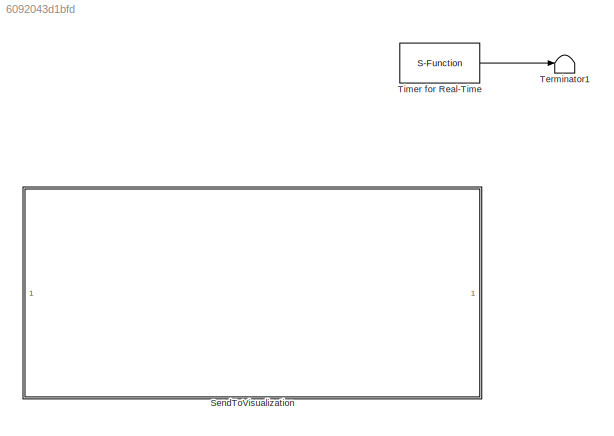
MODEL slx_6092043d1bfd
KIND model
CONFIG AbsTol = auto
CONFIG EnableMultiTasking = off
CONFIG FixedStep = auto
CONFIG MaxStep = auto
CONFIG MinStep = auto
CONFIG RelTol = 1e-3
CONFIG SampleTimeConstraint = Unconstrained
CONFIG Solver = VariableStepAuto
CONFIG SolverName = VariableStepAuto
CONFIG StartTime = 0.0
CONFIG StopTime = inf
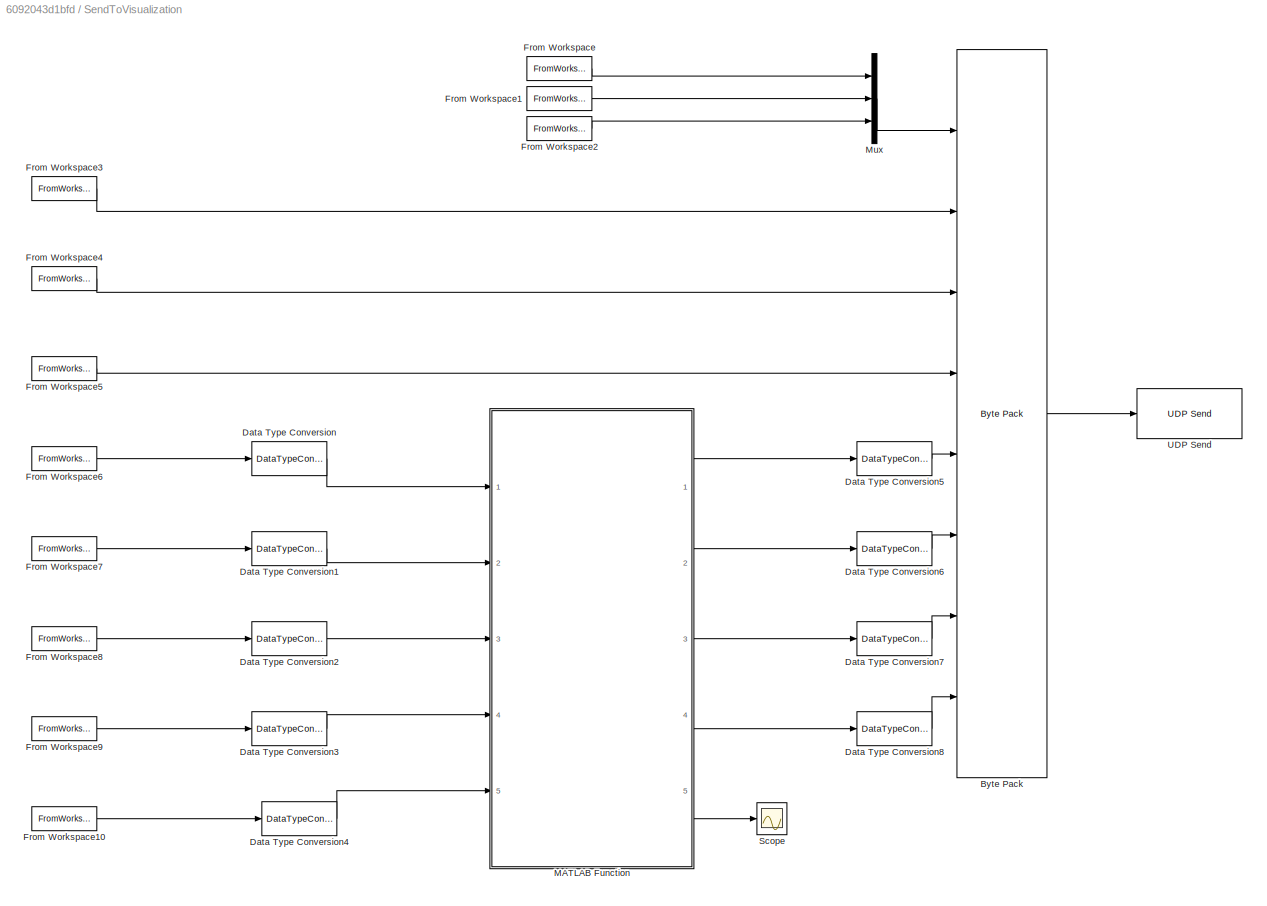
BLOCK [SubSystem] SendToVisualization
  Ports = []
  RequestExecContextInheritance = off
BLOCK [Reference] SendToVisualization/Byte Pack  REF=etargetslib/Byte Pack
  Ports = [8, 1]
  SourceBlock = etargetslib/Byte Pack
  SourceType = Byte pack
BLOCK [DataTypeConversion] SendToVisualization/Data Type Conversion
  OutDataTypeStr = double
  RndMeth = Floor
  SaturateOnIntegerOverflow = off
BLOCK [DataTypeConversion] SendToVisualization/Data Type Conversion1
  OutDataTypeStr = double
  RndMeth = Floor
  SaturateOnIntegerOverflow = off
BLOCK [DataTypeConversion] SendToVisualization/Data Type Conversion2
  OutDataTypeStr = double
  RndMeth = Floor
  SaturateOnIntegerOverflow = off
BLOCK [DataTypeConversion] SendToVisualization/Data Type Conversion3
  OutDataTypeStr = double
  RndMeth = Floor
  SaturateOnIntegerOverflow = off
BLOCK [DataTypeConversion] SendToVisualization/Data Type Conversion4
  OutDataTypeStr = double
  RndMeth = Floor
  SaturateOnIntegerOverflow = off
BLOCK [DataTypeConversion] SendToVisualization/Data Type Conversion5
  OutDataTypeStr = single
  RndMeth = Floor
  SaturateOnIntegerOverflow = off
BLOCK [DataTypeConversion] SendToVisualization/Data Type Conversion6
  OutDataTypeStr = single
  RndMeth = Floor
  SaturateOnIntegerOverflow = off
BLOCK [DataTypeConversion] SendToVisualization/Data Type Conversion7
  OutDataTypeStr = single
  RndMeth = Floor
  SaturateOnIntegerOverflow = off
BLOCK [DataTypeConversion] SendToVisualization/Data Type Conversion8
  OutDataTypeStr = single
  RndMeth = Floor
  SaturateOnIntegerOverflow = off
BLOCK [FromWorkspace] SendToVisualization/From Workspace
  SampleTime = 0
  VariableName = debug.debug_mvdc_state_estimation_debug_StateEstimate_Pos_x_m
  ZeroCross = on
BLOCK [FromWorkspace] SendToVisualization/From Workspace1
  SampleTime = 0
  VariableName = debug.debug_mvdc_state_estimation_debug_StateEstimate_Pos_y_m
  ZeroCross = on
BLOCK [FromWorkspace] SendToVisualization/From Workspace10
  SampleTime = 0
  VariableName = mvdc_tube_mpc_debug.mvdc_tube_mpc_debug_psi_traj_rad
  ZeroCross = on
BLOCK [FromWorkspace] SendToVisualization/From Workspace2
  SampleTime = 0
  VariableName = debug.debug_mvdc_state_estimation_debug_StateEstimate_Pos_psi_rad
  ZeroCross = on
BLOCK [FromWorkspace] SendToVisualization/From Workspace3
  SampleTime = 0
  VariableName = mvdc_tube_mpc_debug.mvdc_tube_mpc_debug_x_pred_m
  ZeroCross = on
BLOCK [FromWorkspace] SendToVisualization/From Workspace4
  SampleTime = 0
  VariableName = mvdc_tube_mpc_debug.mvdc_tube_mpc_debug_y_pred_m
  ZeroCross = on
BLOCK [FromWorkspace] SendToVisualization/From Workspace5
  SampleTime = 0
  VariableName = mvdc_tube_mpc_debug.mvdc_tube_mpc_debug_v_pred_mps
  ZeroCross = on
BLOCK [FromWorkspace] SendToVisualization/From Workspace6
  SampleTime = 0
  VariableName = mvdc_tube_mpc_debug.mvdc_tube_mpc_debug_ay_dist_pred_ub_mps2
  ZeroCross = on
BLOCK [FromWorkspace] SendToVisualization/From Workspace7
  SampleTime = 0
  VariableName = mvdc_tube_mpc_debug.mvdc_tube_mpc_debug_ay_dist_pred_lb_mps2
  ZeroCross = on
BLOCK [FromWorkspace] SendToVisualization/From Workspace8
  SampleTime = 0
  VariableName = mvdc_tube_mpc_debug.mvdc_tube_mpc_debug_x_traj_m
  ZeroCross = on
BLOCK [FromWorkspace] SendToVisualization/From Workspace9
  SampleTime = 0
  VariableName = mvdc_tube_mpc_debug.mvdc_tube_mpc_debug_y_traj_m
  ZeroCross = on
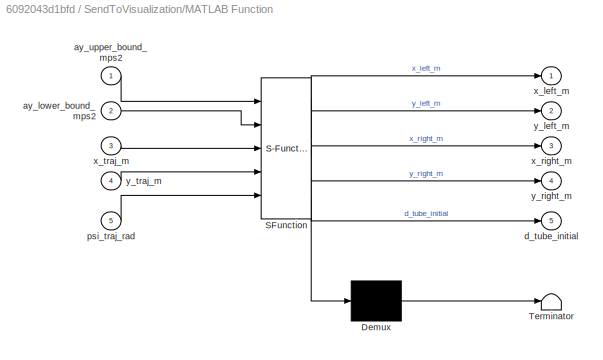
BLOCK [SubSystem] SendToVisualization/MATLAB Function
  ErrorFcn = Stateflow.Translate.translate
  PermitHierarchicalResolution = ExplicitOnly
  Ports = [5, 5]
  RequestExecContextInheritance = off
  SFBlockType = MATLAB Function
  TreatAsAtomicUnit = on
BLOCK [Demux] SendToVisualization/MATLAB Function/ Demux 
  Outputs = 1
  Ports = [1, 1]
BLOCK [S-Function] SendToVisualization/MATLAB Function/ SFunction 
  EnableBusSupport = on
  FunctionName = sf_sfun
  PortCounts = [5 6]
  Ports = [5, 6]
  SFcnIsStateOwnerBlock = off
  SFunctionDeploymentMode = off
  Tag = Stateflow S-Function replayMPCData 2
BLOCK [Terminator] SendToVisualization/MATLAB Function/ Terminator 
BLOCK [Inport] SendToVisualization/MATLAB Function/ay_lower_bound_mps2
  IconDisplay = Port number
  Port = 2
BLOCK [Inport] SendToVisualization/MATLAB Function/ay_upper_bound_mps2
  IconDisplay = Port number
BLOCK [Outport] SendToVisualization/MATLAB Function/d_tube_initial
  IconDisplay = Port number
  Port = 5
BLOCK [Inport] SendToVisualization/MATLAB Function/psi_traj_rad
  IconDisplay = Port number
  Port = 5
BLOCK [Outport] SendToVisualization/MATLAB Function/x_left_m
  IconDisplay = Port number
BLOCK [Outport] SendToVisualization/MATLAB Function/x_right_m
  IconDisplay = Port number
  Port = 3
BLOCK [Inport] SendToVisualization/MATLAB Function/x_traj_m
  IconDisplay = Port number
  Port = 3
BLOCK [Outport] SendToVisualization/MATLAB Function/y_left_m
  IconDisplay = Port number
  Port = 2
BLOCK [Outport] SendToVisualization/MATLAB Function/y_right_m
  IconDisplay = Port number
  Port = 4
BLOCK [Inport] SendToVisualization/MATLAB Function/y_traj_m
  IconDisplay = Port number
  Port = 4
BLOCK [Mux] SendToVisualization/Mux
  DisplayOption = bar
  Inputs = 3
  Ports = [3, 1]
BLOCK [Scope] SendToVisualization/Scope
  Floating = off
  NumInputPorts = 1
  Ports = [1]
  ScopeSpecificationString = Simulink.scopes.TimeScopeBlockCfg('CurrentConfiguration', extmgr.ConfigurationSet(extmgr.Configuration('Core','General UI',true),extmgr.Configuration('Core','Source UI',true),extmgr.Configuration('Sources','WiredSimulink',true),extmgr.Configuration('Visuals','Time Domain',true,'SerializedDisplays',{struct('MinYLimReal','-0.87438','MaxYLimReal','7.86938','YLabelReal','','MinYLimMag','0.00000','MaxY...<+1403ch>
BLOCK [Reference] SendToVisualization/UDP Send  REF=dspnetwork/UDP Send
  Ports = [1]
  SourceBlock = dspnetwork/UDP Send
  SourceProductBaseCode = DS
  SourceProductName = DSP System Toolbox
  SourceType = UDP Send
BLOCK [Terminator] Terminator1
BLOCK [S-Function] Timer for Real-Time
  EnableBusSupport = off
  FunctionName = sfun_rttime
  Parameters = 1
  Ports = [0, 1]
  SFcnIsStateOwnerBlock = off
  SFunctionDeploymentMode = off
LINE SendToVisualization/Byte Pack:1 -> SendToVisualization/UDP Send:1
LINE SendToVisualization/Data Type Conversion1:1 -> SendToVisualization/MATLAB Function:2
LINE SendToVisualization/Data Type Conversion2:1 -> SendToVisualization/MATLAB Function:3
LINE SendToVisualization/Data Type Conversion3:1 -> SendToVisualization/MATLAB Function:4
LINE SendToVisualization/Data Type Conversion4:1 -> SendToVisualization/MATLAB Function:5
LINE SendToVisualization/Data Type Conversion5:1 -> SendToVisualization/Byte Pack:5
LINE SendToVisualization/Data Type Conversion6:1 -> SendToVisualization/Byte Pack:6
LINE SendToVisualization/Data Type Conversion7:1 -> SendToVisualization/Byte Pack:7
LINE SendToVisualization/Data Type Conversion8:1 -> SendToVisualization/Byte Pack:8
LINE SendToVisualization/Data Type Conversion:1 -> SendToVisualization/MATLAB Function:1
LINE SendToVisualization/From Workspace10:1 -> SendToVisualization/Data Type Conversion4:1
LINE SendToVisualization/From Workspace1:1 -> SendToVisualization/Mux:2
LINE SendToVisualization/From Workspace2:1 -> SendToVisualization/Mux:3
LINE SendToVisualization/From Workspace3:1 -> SendToVisualization/Byte Pack:2
LINE SendToVisualization/From Workspace4:1 -> SendToVisualization/Byte Pack:3
LINE SendToVisualization/From Workspace5:1 -> SendToVisualization/Byte Pack:4
LINE SendToVisualization/From Workspace6:1 -> SendToVisualization/Data Type Conversion:1
LINE SendToVisualization/From Workspace7:1 -> SendToVisualization/Data Type Conversion1:1
LINE SendToVisualization/From Workspace8:1 -> SendToVisualization/Data Type Conversion2:1
LINE SendToVisualization/From Workspace9:1 -> SendToVisualization/Data Type Conversion3:1
LINE SendToVisualization/From Workspace:1 -> SendToVisualization/Mux:1
LINE SendToVisualization/MATLAB Function:1 -> SendToVisualization/Data Type Conversion5:1
LINE SendToVisualization/MATLAB Function:2 -> SendToVisualization/Data Type Conversion6:1
LINE SendToVisualization/MATLAB Function:3 -> SendToVisualization/Data Type Conversion7:1
LINE SendToVisualization/MATLAB Function:4 -> SendToVisualization/Data Type Conversion8:1
LINE SendToVisualization/MATLAB Function:5 -> SendToVisualization/Scope:1
LINE SendToVisualization/Mux:1 -> SendToVisualization/Byte Pack:1
LINE Timer for Real-Time:1 -> Terminator1:1
CHART SendToVisualization/MATLAB Function states=1 transitions=1
  STATE_LABEL 'eML_blk_kernel()'
  STATE_LABEL 'SCRIPT:\nfunction [x_left_m, y_left_m, x_right_m, y_right_m, d_tube_initial] = fcn(ay_upper_bound_mps2, ay_lower_bound_mps2, x_traj_m, y_traj_m, psi_traj_rad)\n\n% initialize outputs\nx_left_m = zeros(50, 1); \ny_left_m = zeros(50, 1);\nx_right_m = zeros(50, 1);\ny_right_m = zeros(50, 1);\n\nA_d = [1.0000,         0,         0;...\n         0,    1.0000,    0.0400;\n         0,         0,    1.0000]; \nB_d = ...<+1269ch>'
